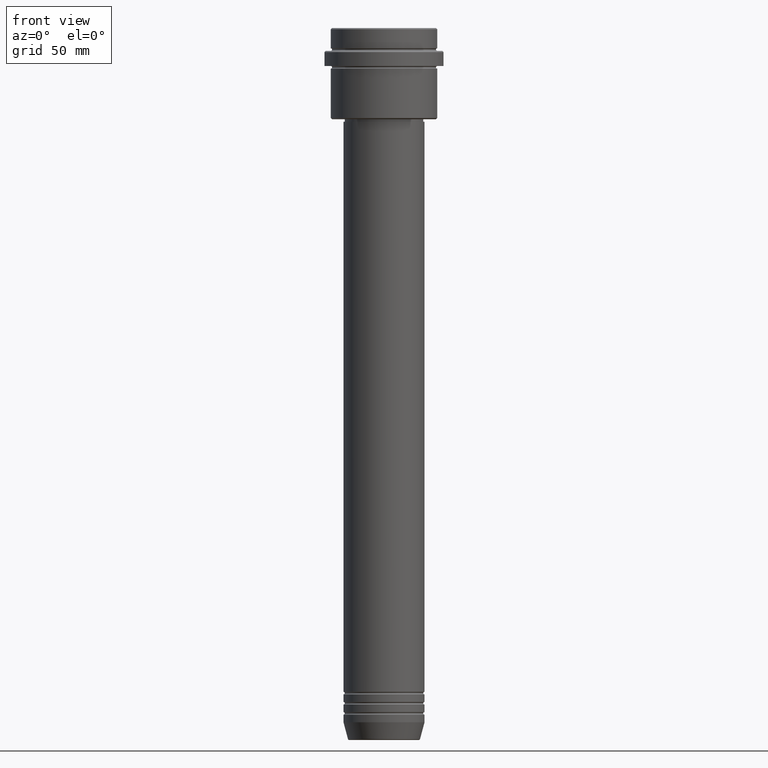
[diagram: clean part render]
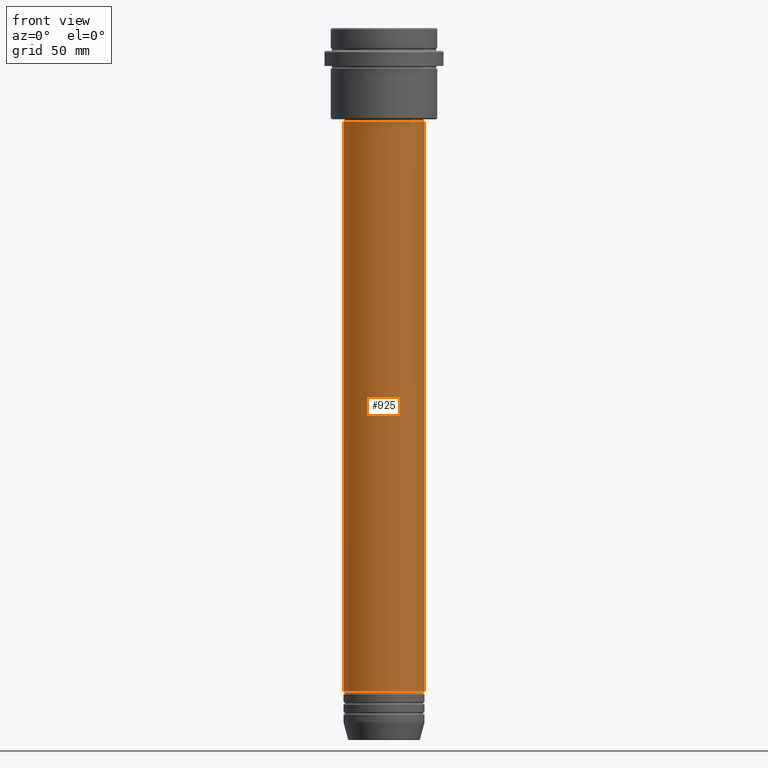
[diagram: same view with one face highlighted and labeled with its STEP entity id]
A machine part, front view. The second image highlights one B-rep face of the part: STEP entity #925.
In plain terms, the highlighted cylindrical surface (partial cylindrical patch) has radius 16 mm, axis along (-0, -0, 1).
Its self-contained STEP definition (entity closure, byte-faithful):
#5 = ORIENTED_EDGE ( 'NONE', *, *, #1066, .T. ) ;
#30 = AXIS2_PLACEMENT_3D ( 'NONE', #712, #1235, #1121 ) ;
#32 = DIRECTION ( 'NONE',  ( -0.000000000000000000, -0.000000000000000000, 1.000000000000000000 ) ) ;
#77 = VECTOR ( 'NONE', #1053, 1000.000000000000000 ) ;
#114 = CARTESIAN_POINT ( 'NONE',  ( 0.000000000000000000, 0.000000000000000000, -37.00000000000008527 ) ) ;
#126 = CARTESIAN_POINT ( 'NONE',  ( 16.00000000000000000, 0.000000000000000000, 0.000000000000000000 ) ) ;
#147 = DIRECTION ( 'NONE',  ( 1.000000000000000000, 0.000000000000000000, 0.000000000000000000 ) ) ;
#218 = AXIS2_PLACEMENT_3D ( 'NONE', #114, #257, #147 ) ;
#219 = CARTESIAN_POINT ( 'NONE',  ( 0.000000000000000000, 0.000000000000000000, 0.000000000000000000 ) ) ;
#228 = EDGE_CURVE ( 'NONE', #315, #611, #284, .T. ) ;
#257 = DIRECTION ( 'NONE',  ( -0.000000000000000000, -0.000000000000000000, 1.000000000000000000 ) ) ;
#284 = CIRCLE ( 'NONE', #218, 16.00000000000000355 ) ;
#315 = VERTEX_POINT ( 'NONE', #739 ) ;
#338 = CYLINDRICAL_SURFACE ( 'NONE', #1264, 16.00000000000000000 ) ;
#433 = ORIENTED_EDGE ( 'NONE', *, *, #1110, .F. ) ;
#527 = CARTESIAN_POINT ( 'NONE',  ( -16.00000000000000000, 1.959434878635765131E-15, -261.9999999999998863 ) ) ;
#611 = VERTEX_POINT ( 'NONE', #940 ) ;
#615 = LINE ( 'NONE', #1063, #77 ) ;
#712 = CARTESIAN_POINT ( 'NONE',  ( 0.000000000000000000, 0.000000000000000000, -261.9999999999998863 ) ) ;
#739 = CARTESIAN_POINT ( 'NONE',  ( -16.00000000000000355, 1.959434878635765526E-15, -37.00000000000008527 ) ) ;
#782 = ORIENTED_EDGE ( 'NONE', *, *, #967, .T. ) ;
#808 = LINE ( 'NONE', #126, #1405 ) ;
#824 = CIRCLE ( 'NONE', #30, 16.00000000000000000 ) ;
#867 = EDGE_LOOP ( 'NONE', ( #433, #782, #5, #1356 ) ) ;
#895 = VERTEX_POINT ( 'NONE', #1005 ) ;
#925 = ADVANCED_FACE ( 'NONE', ( #1198 ), #338, .T. ) ;
#940 = CARTESIAN_POINT ( 'NONE',  ( 16.00000000000000355, 0.000000000000000000, -37.00000000000008527 ) ) ;
#967 = EDGE_CURVE ( 'NONE', #1250, #895, #824, .T. ) ;
#1005 = CARTESIAN_POINT ( 'NONE',  ( 16.00000000000000000, 0.000000000000000000, -261.9999999999998863 ) ) ;
#1053 = DIRECTION ( 'NONE',  ( -0.000000000000000000, -0.000000000000000000, 1.000000000000000000 ) ) ;
#1063 = CARTESIAN_POINT ( 'NONE',  ( -16.00000000000000000, 1.959434878635765131E-15, 0.000000000000000000 ) ) ;
#1066 = EDGE_CURVE ( 'NONE', #895, #611, #808, .T. ) ;
#1088 = DIRECTION ( 'NONE',  ( 1.000000000000000000, 0.000000000000000000, 0.000000000000000000 ) ) ;
#1097 = DIRECTION ( 'NONE',  ( -0.000000000000000000, -0.000000000000000000, 1.000000000000000000 ) ) ;
#1110 = EDGE_CURVE ( 'NONE', #1250, #315, #615, .T. ) ;
#1121 = DIRECTION ( 'NONE',  ( 1.000000000000000000, 0.000000000000000000, 0.000000000000000000 ) ) ;
#1198 = FACE_OUTER_BOUND ( 'NONE', #867, .T. ) ;
#1235 = DIRECTION ( 'NONE',  ( -0.000000000000000000, -0.000000000000000000, 1.000000000000000000 ) ) ;
#1250 = VERTEX_POINT ( 'NONE', #527 ) ;
#1264 = AXIS2_PLACEMENT_3D ( 'NONE', #219, #1097, #1088 ) ;
#1356 = ORIENTED_EDGE ( 'NONE', *, *, #228, .F. ) ;
#1405 = VECTOR ( 'NONE', #32, 1000.000000000000000 ) ;